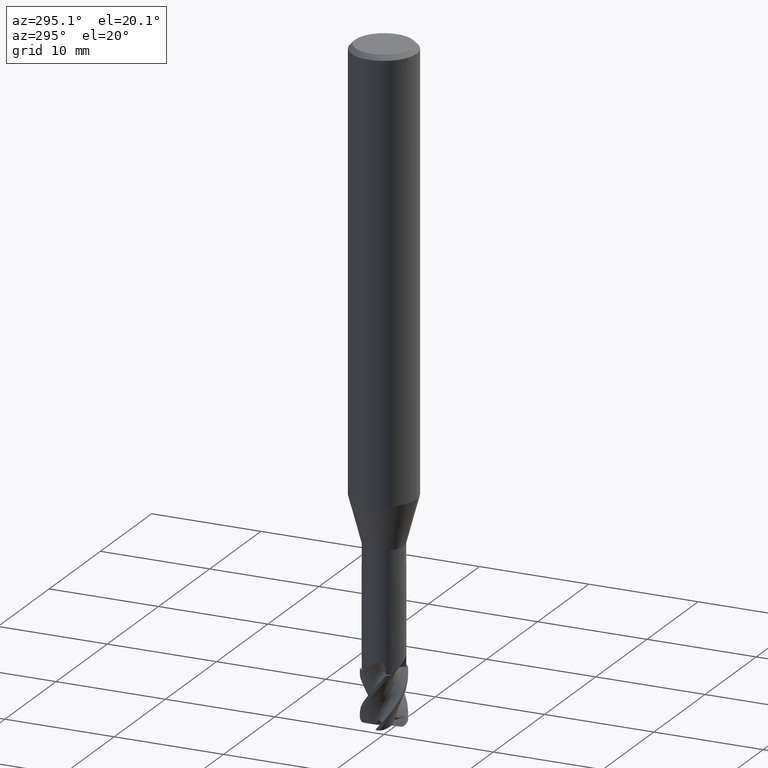
[diagram: clean part render]
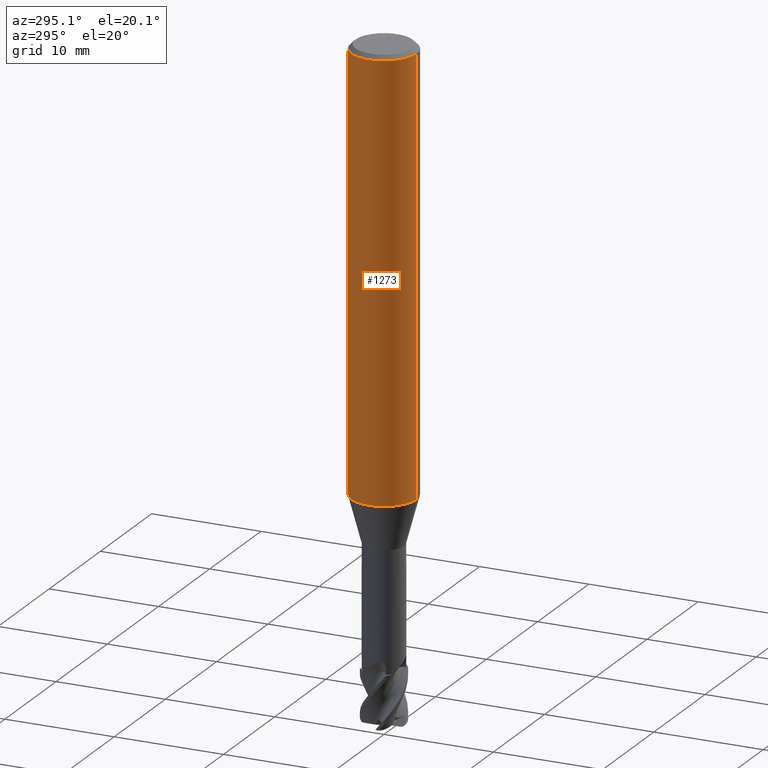
[diagram: same view with one face highlighted and labeled with its STEP entity id]
A machine part, auxiliary view. The second image highlights one B-rep face of the part: STEP entity #1273.
In plain terms, the highlighted cylindrical surface (edge-blend (fillet) strip) has radius 3 mm, axis along (-0, -0, 1).
Its self-contained STEP definition (entity closure, byte-faithful):
#543=VERTEX_POINT('',#1526);
#577=VERTEX_POINT('',#1565);
#589=VERTEX_POINT('',#1577);
#619=EDGE_CURVE('',#875,#1267,#1609,.T.);
#633=VERTEX_POINT('',#1625);
#671=VERTEX_POINT('',#1665);
#753=EDGE_CURVE('',#1403,#633,#1758,.T.);
#759=EDGE_CURVE('',#577,#589,#1765,.T.);
#831=EDGE_CURVE('',#671,#577,#1841,.T.);
#875=VERTEX_POINT('',#1889);
#895=EDGE_CURVE('',#1345,#875,#1910,.T.);
#905=EDGE_CURVE('',#1019,#1461,#1922,.T.);
#1019=VERTEX_POINT('',#2048);
#1073=EDGE_CURVE('',#589,#671,#2111,.T.);
#1089=EDGE_CURVE('',#1019,#1205,#2129,.T.);
#1111=EDGE_CURVE('',#633,#1345,#2151,.T.);
#1205=VERTEX_POINT('',#2249);
#1267=VERTEX_POINT('',#2315);
#1273=ADVANCED_FACE('',(#2322,#2323,#2324),#2325,.T.);
#1343=EDGE_CURVE('',#1267,#1403,#2403,.T.);
#1345=VERTEX_POINT('',#2405);
#1403=VERTEX_POINT('',#2467);
#1419=EDGE_CURVE('',#1205,#543,#2484,.T.);
#1423=EDGE_CURVE('',#543,#1461,#2488,.T.);
#1461=VERTEX_POINT('',#2530);
#1526=CARTESIAN_POINT('',(0.0,3.0,-0.399999999999999));
#1565=CARTESIAN_POINT('',(-0.891353646972585,2.86452241674396,-35.2894605734398));
#1577=CARTESIAN_POINT('',(-0.0173204359069978,2.99995,-35.7289133845535));
#1609=B_SPLINE_CURVE_WITH_KNOTS('',3,(#3133,#3134,#3135,#3136,#3137,#3138,#3139,#3140,#3141,#3142,#3143,#3144,#3145,#3146,#3147,#3148,#3149,#3150,#3151,#3152,#3153,#3154,#3155,#3156,#3157,#3158,#3159),.UNSPECIFIED.,.F.,.F.,(4,2,3,2,2,2,2,2,2,2,2,2,4),(-0.361797878080097,-0.180898939040048,0.0,0.180898939040045,0.36179787808009,0.54316499674529,0.724532115410489,0.905110773244761,1.08568943107903,1.26650066090355,1.44731189072806,1.62812312055258,1.80893435037709),.UNSPECIFIED.);
#1625=CARTESIAN_POINT('',(-0.690037436273679,2.9195630386311,-33.9195112759038));
#1665=CARTESIAN_POINT('',(-0.017320435906985,2.99995,-34.8585476553544));
#1758=CIRCLE('',#4031,3.0);
#1765=B_SPLINE_CURVE_WITH_KNOTS('',3,(#4083,#4084,#4085,#4086,#4087,#4088,#4089,#4090,#4091,#4092),.UNSPECIFIED.,.F.,.F.,(4,2,2,2,4),(3.71798730591323,4.13127027719931,4.54460961578536,4.9579489543714,5.37052319276389),.UNSPECIFIED.);
#1841=ELLIPSE('',#4350,3.34478529612858,3.0);
#1889=CARTESIAN_POINT('',(-0.017320435906965,2.99995,-34.386064236895));
#1910=LINE('',#4898,#4899);
#1922=CIRCLE('',#5026,3.0);
#2048=CARTESIAN_POINT('',(3.67381906146713E-016,-3.0,-39.708));
#2111=LINE('',#5924,#5925);
#2129=LINE('',#5946,#5947);
#2151=B_SPLINE_CURVE_WITH_KNOTS('',3,(#5993,#5994,#5995,#5996,#5997,#5998,#5999,#6000,#6001,#6002,#6003,#6004,#6005,#6006),.UNSPECIFIED.,.F.,.F.,(4,2,2,2,2,2,4),(2.091097645352,2.38959558480883,2.68809352426566,2.9865914637225,3.28432857408576,3.58206568444903,3.88185771191667),.UNSPECIFIED.);
#2249=CARTESIAN_POINT('',(3.67381906146713E-016,-3.0,-0.399999999999999));
#2315=CARTESIAN_POINT('',(-0.324247225918625,2.98242581407888,-34.136948685318));
#2322=FACE_OUTER_BOUND('',#6919,.T.);
#2323=FACE_BOUND('',#6920,.T.);
#2324=FACE_BOUND('',#6921,.T.);
#2325=CYLINDRICAL_SURFACE('',#6922,3.0);
#2403=B_SPLINE_CURVE_WITH_KNOTS('',3,(#7098,#7099,#7100,#7101,#7102,#7103,#7104,#7105,#7106,#7107,#7108,#7109,#7110,#7111,#7112,#7113,#7114,#7115,#7116,#7117,#7118,#7119,#7120,#7121,#7122,#7123,#7124),.UNSPECIFIED.,.F.,.F.,(4,2,3,2,2,2,2,2,2,2,2,2,4),(-0.361797878080097,-0.180898939040048,0.0,0.180898939040045,0.36179787808009,0.54316499674529,0.724532115410489,0.905110773244761,1.08568943107903,1.26650066090355,1.44731189072806,1.62812312055258,1.80893435037709),.UNSPECIFIED.);
#2405=CARTESIAN_POINT('',(-0.0173204359069893,2.99995,-34.7057581803455));
#2467=CARTESIAN_POINT('',(-0.374883079288044,2.9764849532399,-33.9195112759038));
#2484=CIRCLE('',#7722,3.0);
#2488=LINE('',#7733,#7734);
#2530=CARTESIAN_POINT('',(0.0,3.0,-39.708));
#3133=CARTESIAN_POINT('',(0.443451175650265,2.96704416125113,-33.5838764058061));
#3134=CARTESIAN_POINT('',(0.485825230520439,2.96071098134951,-33.6263072631593));
#3135=CARTESIAN_POINT('',(0.522628634598443,2.95423041401875,-33.6800565977036));
#3136=CARTESIAN_POINT('',(0.57151547907337,2.94516350896329,-33.7980093998545));
#3137=CARTESIAN_POINT('',(0.58359092842081,2.94268952291351,-33.8622247886018));
#3138=CARTESIAN_POINT('',(0.58359092842081,2.94268952291351,-33.9225244349484));
#3139=CARTESIAN_POINT('',(0.58359092842081,2.94268952291351,-33.9828240812951));
#3140=CARTESIAN_POINT('',(0.571515479073374,2.94516350896329,-34.0470394700423));
#3141=CARTESIAN_POINT('',(0.522628634598449,2.95423041401874,-34.1649922721932));
#3142=CARTESIAN_POINT('',(0.485825230520438,2.96071098134951,-34.2187416067375));
#3143=CARTESIAN_POINT('',(0.400967453640912,2.97339373188344,-34.3037131355921));
#3144=CARTESIAN_POINT('',(0.347160591378603,2.98043595390805,-34.3406186343397));
#3145=CARTESIAN_POINT('',(0.229067490754345,2.99183004798448,-34.3896491335629));
#3146=CARTESIAN_POINT('',(0.164768311964613,2.99608182394725,-34.4017661750437));
#3147=CARTESIAN_POINT('',(0.0441927259273236,3.00027835150232,-34.4017661750437));
#3148=CARTESIAN_POINT('',(-0.019984914707439,3.00051422459916,-34.3897432311485));
#3149=CARTESIAN_POINT('',(-0.138011899975601,2.99740516520178,-34.3408705536194));
#3150=CARTESIAN_POINT('',(-0.191865153226538,2.99416206152009,-34.3040238345305));
#3151=CARTESIAN_POINT('',(-0.276951356845972,2.9874941541864,-34.2190104084073));
#3152=CARTESIAN_POINT('',(-0.31385751762486,2.98363884435361,-34.1651404765947));
#3153=CARTESIAN_POINT('',(-0.362829872721118,2.97808021777493,-34.04703592618));
#3154=CARTESIAN_POINT('',(-0.374892551769671,2.97648376018208,-33.9827948448899));
#3155=CARTESIAN_POINT('',(-0.374892551769671,2.97648376018208,-33.8622540250069));
#3156=CARTESIAN_POINT('',(-0.362829872721118,2.97808021777493,-33.7980129437168));
#3157=CARTESIAN_POINT('',(-0.31385751762486,2.98363884435361,-33.6799083933022));
#3158=CARTESIAN_POINT('',(-0.276951356845972,2.9874941541864,-33.6260384614896));
#3159=CARTESIAN_POINT('',(-0.234380876478644,2.99083025341478,-33.5835043932883));
#4031=AXIS2_PLACEMENT_3D('',#8197,#8198,#8199);
#4083=CARTESIAN_POINT('',(-1.02131077257619,2.8208020678204,-35.0603603909889));
#4084=CARTESIAN_POINT('',(-0.965748326062893,2.84091920915678,-35.193858656383));
#4085=CARTESIAN_POINT('',(-0.882474008253194,2.86898278727422,-35.3150393018291));
#4086=CARTESIAN_POINT('',(-0.691181971660376,2.92097462682348,-35.5064209134462));
#4087=CARTESIAN_POINT('',(-0.569939118101215,2.94845792845378,-35.5898242986056));
#4088=CARTESIAN_POINT('',(-0.302738780934602,2.98773894197887,-35.7011051738375));
#4089=CARTESIAN_POINT('',(-0.156684840798735,2.99907204453492,-35.7289145449035));
#4090=CARTESIAN_POINT('',(0.118614216879022,3.00080717863586,-35.7289145449035));
#4091=CARTESIAN_POINT('',(0.264548965222023,2.99134988491468,-35.7011974310104));
#4092=CARTESIAN_POINT('',(0.398117192990064,2.97346644518577,-35.6456337934181));
#4350=AXIS2_PLACEMENT_3D('',#8267,#8268,#8269);
#4898=CARTESIAN_POINT('',(-0.017320435906985,2.99995,-34.7185073647412));
#4899=VECTOR('',#8322,1.0);
#5026=AXIS2_PLACEMENT_3D('',#8347,#8348,#8349);
#5924=CARTESIAN_POINT('',(-0.017320435906985,2.99995,-34.7185073647412));
#5925=VECTOR('',#8591,1.0);
#5946=CARTESIAN_POINT('',(3.67381906146713E-016,-3.0,-20.054));
#5947=VECTOR('',#8622,1.0);
#5993=CARTESIAN_POINT('',(-0.629727328037683,2.93316271153213,-33.6230913557644));
#5994=CARTESIAN_POINT('',(-0.670089755997728,2.92449721450026,-33.7202639601135));
#5995=CARTESIAN_POINT('',(-0.690061178540054,2.91955742705498,-33.8261316354559));
#5996=CARTESIAN_POINT('',(-0.690061178540054,2.91955742705498,-34.0251302617605));
#5997=CARTESIAN_POINT('',(-0.670089755997728,2.92449721450026,-34.1309979371029));
#5998=CARTESIAN_POINT('',(-0.589364900077664,2.94182820856402,-34.3253431458012));
#5999=CARTESIAN_POINT('',(-0.528629969212499,2.95390696563364,-34.4138560999866));
#6000=CARTESIAN_POINT('',(-0.388825924618277,2.97553438372319,-34.5534507471901));
#6001=CARTESIAN_POINT('',(-0.300374998568301,2.98650953771095,-34.6140152917628));
#6002=CARTESIAN_POINT('',(-0.106252469502454,2.99969577970094,-34.6944637231012));
#6003=CARTESIAN_POINT('',(-0.000555188223129111,3.0016411180253,-34.7143289843056));
#6004=CARTESIAN_POINT('',(0.198513504569518,2.99509240733468,-34.7143289843056));
#6005=CARTESIAN_POINT('',(0.304528894401634,2.98611319488251,-34.694217470731));
#6006=CARTESIAN_POINT('',(0.401676121348868,2.97298777218106,-34.6537873850085));
#6919=EDGE_LOOP('',(#8767,#8768,#8769,#8770));
#6920=EDGE_LOOP('',(#8771,#8772,#8773));
#6921=EDGE_LOOP('',(#8774,#8775,#8776,#8777,#8778));
#6922=AXIS2_PLACEMENT_3D('',#8779,#8780,#8781);
#7098=CARTESIAN_POINT('',(0.443451175650265,2.96704416125113,-33.5838764058061));
#7099=CARTESIAN_POINT('',(0.485825230520439,2.96071098134951,-33.6263072631593));
#7100=CARTESIAN_POINT('',(0.522628634598443,2.95423041401875,-33.6800565977036));
#7101=CARTESIAN_POINT('',(0.57151547907337,2.94516350896329,-33.7980093998545));
#7102=CARTESIAN_POINT('',(0.58359092842081,2.94268952291351,-33.8622247886018));
#7103=CARTESIAN_POINT('',(0.58359092842081,2.94268952291351,-33.9225244349484));
#7104=CARTESIAN_POINT('',(0.58359092842081,2.94268952291351,-33.9828240812951));
#7105=CARTESIAN_POINT('',(0.571515479073374,2.94516350896329,-34.0470394700423));
#7106=CARTESIAN_POINT('',(0.522628634598449,2.95423041401874,-34.1649922721932));
#7107=CARTESIAN_POINT('',(0.485825230520438,2.96071098134951,-34.2187416067375));
#7108=CARTESIAN_POINT('',(0.400967453640912,2.97339373188344,-34.3037131355921));
#7109=CARTESIAN_POINT('',(0.347160591378603,2.98043595390805,-34.3406186343397));
#7110=CARTESIAN_POINT('',(0.229067490754345,2.99183004798448,-34.3896491335629));
#7111=CARTESIAN_POINT('',(0.164768311964613,2.99608182394725,-34.4017661750437));
#7112=CARTESIAN_POINT('',(0.0441927259273236,3.00027835150232,-34.4017661750437));
#7113=CARTESIAN_POINT('',(-0.019984914707439,3.00051422459916,-34.3897432311485));
#7114=CARTESIAN_POINT('',(-0.138011899975601,2.99740516520178,-34.3408705536194));
#7115=CARTESIAN_POINT('',(-0.191865153226538,2.99416206152009,-34.3040238345305));
#7116=CARTESIAN_POINT('',(-0.276951356845972,2.9874941541864,-34.2190104084073));
#7117=CARTESIAN_POINT('',(-0.31385751762486,2.98363884435361,-34.1651404765947));
#7118=CARTESIAN_POINT('',(-0.362829872721118,2.97808021777493,-34.04703592618));
#7119=CARTESIAN_POINT('',(-0.374892551769671,2.97648376018208,-33.9827948448899));
#7120=CARTESIAN_POINT('',(-0.374892551769671,2.97648376018208,-33.8622540250069));
#7121=CARTESIAN_POINT('',(-0.362829872721118,2.97808021777493,-33.7980129437168));
#7122=CARTESIAN_POINT('',(-0.31385751762486,2.98363884435361,-33.6799083933022));
#7123=CARTESIAN_POINT('',(-0.276951356845972,2.9874941541864,-33.6260384614896));
#7124=CARTESIAN_POINT('',(-0.234380876478644,2.99083025341478,-33.5835043932883));
#7722=AXIS2_PLACEMENT_3D('',#8936,#8937,#8938);
#7733=CARTESIAN_POINT('',(-3.67381906146713E-016,3.0,-20.054));
#7734=VECTOR('',#8939,1.0);
#8197=CARTESIAN_POINT('',(0.0,0.0,-33.9195112759038));
#8198=DIRECTION('',(0.0,-0.0,1.0));
#8199=DIRECTION('',(0.0,1.0,0.0));
#8267=CARTESIAN_POINT('',(0.0,0.0,-34.8500083922181));
#8268=DIRECTION('',(-0.442195774284071,0.0,0.896918556617774));
#8269=DIRECTION('',(0.896918556617774,-0.0,0.442195774284071));
#8322=DIRECTION('',(-0.0,-0.0,1.0));
#8347=CARTESIAN_POINT('',(0.0,0.0,-39.708));
#8348=DIRECTION('',(0.0,0.0,-1.0));
#8349=DIRECTION('',(0.0,1.0,0.0));
#8591=DIRECTION('',(-0.0,-0.0,1.0));
#8622=DIRECTION('',(-0.0,-0.0,1.0));
#8767=ORIENTED_EDGE('',*,*,#1423,.T.);
#8768=ORIENTED_EDGE('',*,*,#905,.F.);
#8769=ORIENTED_EDGE('',*,*,#1089,.T.);
#8770=ORIENTED_EDGE('',*,*,#1419,.T.);
#8771=ORIENTED_EDGE('',*,*,#759,.T.);
#8772=ORIENTED_EDGE('',*,*,#1073,.T.);
#8773=ORIENTED_EDGE('',*,*,#831,.T.);
#8774=ORIENTED_EDGE('',*,*,#619,.T.);
#8775=ORIENTED_EDGE('',*,*,#1343,.T.);
#8776=ORIENTED_EDGE('',*,*,#753,.T.);
#8777=ORIENTED_EDGE('',*,*,#1111,.T.);
#8778=ORIENTED_EDGE('',*,*,#895,.T.);
#8779=CARTESIAN_POINT('',(0.0,0.0,-20.054));
#8780=DIRECTION('',(-0.0,-0.0,1.0));
#8781=DIRECTION('',(0.0,1.0,0.0));
#8936=CARTESIAN_POINT('',(0.0,0.0,-0.399999999999999));
#8937=DIRECTION('',(0.0,0.0,-1.0));
#8938=DIRECTION('',(0.0,1.0,0.0));
#8939=DIRECTION('',(0.0,0.0,-1.0));